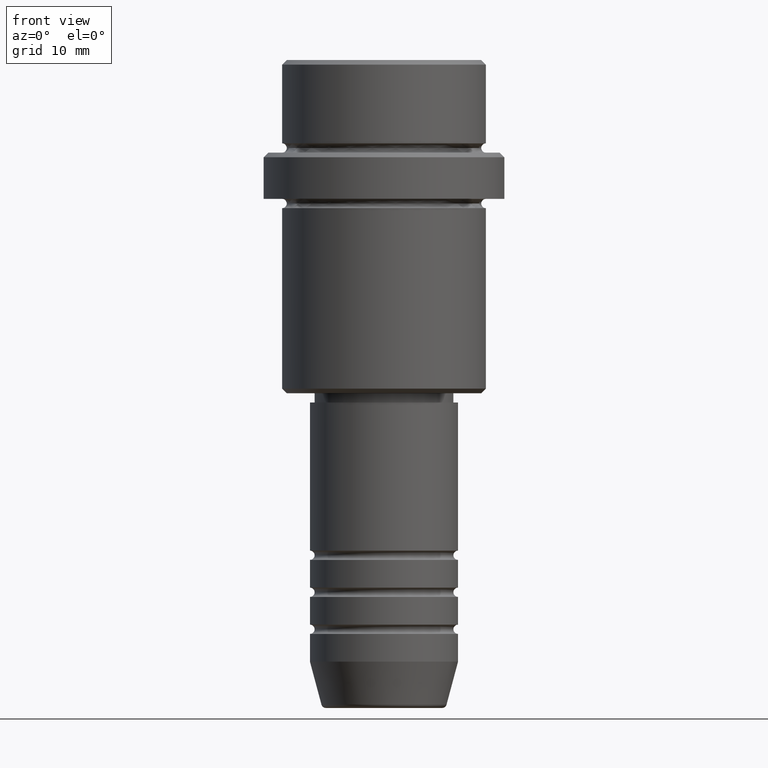
[diagram: clean part render]
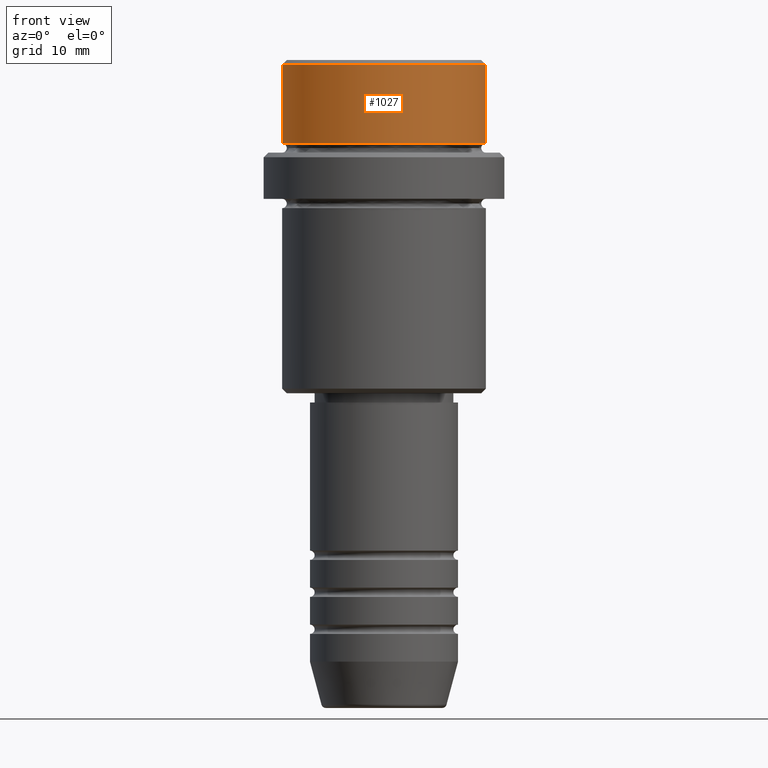
[diagram: same view with one face highlighted and labeled with its STEP entity id]
A machine part, front view. The second image highlights one B-rep face of the part: STEP entity #1027.
In plain terms, the highlighted cylindrical surface (partial cylindrical patch) has radius 11 mm, axis along (-0, -0, 1).
Its self-contained STEP definition (entity closure, byte-faithful):
#5 = VERTEX_POINT ( 'NONE', #1019 ) ;
#78 = CARTESIAN_POINT ( 'NONE',  ( 10.99999999999998757, 0.000000000000000000, -0.4999999999999813483 ) ) ;
#139 = LINE ( 'NONE', #572, #896 ) ;
#279 = AXIS2_PLACEMENT_3D ( 'NONE', #1299, #431, #742 ) ;
#365 = LINE ( 'NONE', #804, #1057 ) ;
#369 = CARTESIAN_POINT ( 'NONE',  ( 0.000000000000000000, 0.000000000000000000, 0.000000000000000000 ) ) ;
#400 = CIRCLE ( 'NONE', #1237, 10.99999999999997158 ) ;
#425 = CIRCLE ( 'NONE', #279, 10.99999999999998757 ) ;
#431 = DIRECTION ( 'NONE',  ( 0.000000000000000000, 0.000000000000000000, -1.000000000000000000 ) ) ;
#459 = DIRECTION ( 'NONE',  ( 1.000000000000000000, 0.000000000000000000, 0.000000000000000000 ) ) ;
#467 = ORIENTED_EDGE ( 'NONE', *, *, #1161, .T. ) ;
#475 = CYLINDRICAL_SURFACE ( 'NONE', #712, 10.99999999999998757 ) ;
#572 = CARTESIAN_POINT ( 'NONE',  ( 10.99999999999998757, 0.000000000000000000, 0.000000000000000000 ) ) ;
#683 = CARTESIAN_POINT ( 'NONE',  ( 10.99999999999997158, 0.000000000000000000, -9.000000000000000000 ) ) ;
#712 = AXIS2_PLACEMENT_3D ( 'NONE', #369, #1097, #459 ) ;
#715 = CARTESIAN_POINT ( 'NONE',  ( -10.99999999999998757, 1.347111479062086827E-15, -0.4999999999999813483 ) ) ;
#742 = DIRECTION ( 'NONE',  ( 1.000000000000000000, 0.000000000000000000, 0.000000000000000000 ) ) ;
#773 = VERTEX_POINT ( 'NONE', #715 ) ;
#804 = CARTESIAN_POINT ( 'NONE',  ( -10.99999999999998757, 1.347111479062086827E-15, 0.000000000000000000 ) ) ;
#896 = VECTOR ( 'NONE', #1012, 1000.000000000000000 ) ;
#945 = DIRECTION ( 'NONE',  ( -0.000000000000000000, -0.000000000000000000, 1.000000000000000000 ) ) ;
#1005 = EDGE_CURVE ( 'NONE', #5, #773, #365, .T. ) ;
#1012 = DIRECTION ( 'NONE',  ( -0.000000000000000000, -0.000000000000000000, 1.000000000000000000 ) ) ;
#1016 = ORIENTED_EDGE ( 'NONE', *, *, #1189, .T. ) ;
#1019 = CARTESIAN_POINT ( 'NONE',  ( -10.99999999999997158, 1.347111479062085841E-15, -9.000000000000000000 ) ) ;
#1027 = ADVANCED_FACE ( 'NONE', ( #1106 ), #475, .T. ) ;
#1053 = EDGE_CURVE ( 'NONE', #1341, #1221, #139, .T. ) ;
#1057 = VECTOR ( 'NONE', #1344, 1000.000000000000000 ) ;
#1097 = DIRECTION ( 'NONE',  ( -0.000000000000000000, -0.000000000000000000, 1.000000000000000000 ) ) ;
#1106 = FACE_OUTER_BOUND ( 'NONE', #1112, .T. ) ;
#1112 = EDGE_LOOP ( 'NONE', ( #1376, #1016, #1313, #467 ) ) ;
#1161 = EDGE_CURVE ( 'NONE', #1221, #773, #425, .T. ) ;
#1181 = CARTESIAN_POINT ( 'NONE',  ( 0.000000000000000000, 0.000000000000000000, -9.000000000000000000 ) ) ;
#1189 = EDGE_CURVE ( 'NONE', #5, #1341, #400, .T. ) ;
#1221 = VERTEX_POINT ( 'NONE', #78 ) ;
#1237 = AXIS2_PLACEMENT_3D ( 'NONE', #1181, #945, #1290 ) ;
#1290 = DIRECTION ( 'NONE',  ( 1.000000000000000000, 0.000000000000000000, 0.000000000000000000 ) ) ;
#1299 = CARTESIAN_POINT ( 'NONE',  ( 0.000000000000000000, 0.000000000000000000, -0.4999999999999813483 ) ) ;
#1313 = ORIENTED_EDGE ( 'NONE', *, *, #1053, .T. ) ;
#1341 = VERTEX_POINT ( 'NONE', #683 ) ;
#1344 = DIRECTION ( 'NONE',  ( -0.000000000000000000, -0.000000000000000000, 1.000000000000000000 ) ) ;
#1376 = ORIENTED_EDGE ( 'NONE', *, *, #1005, .F. ) ;